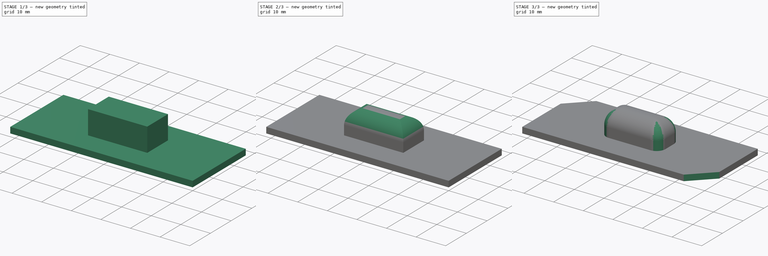
[diagram: build sequence overview — one tinted view per stage of 3, left to right]
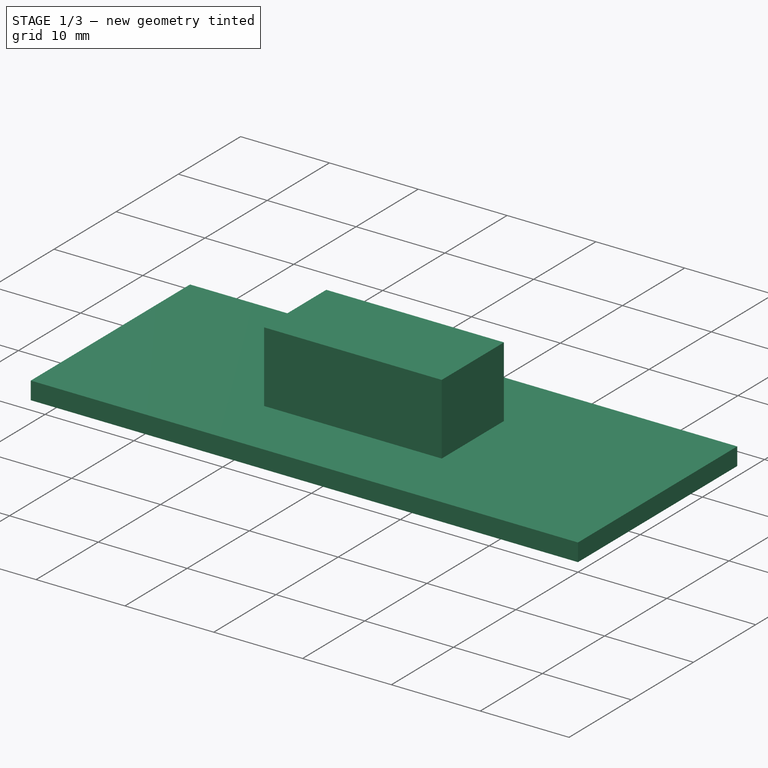
[diagram: stage 1 of 3 — iso view after this stage's code; geometry added in this stage tinted green]
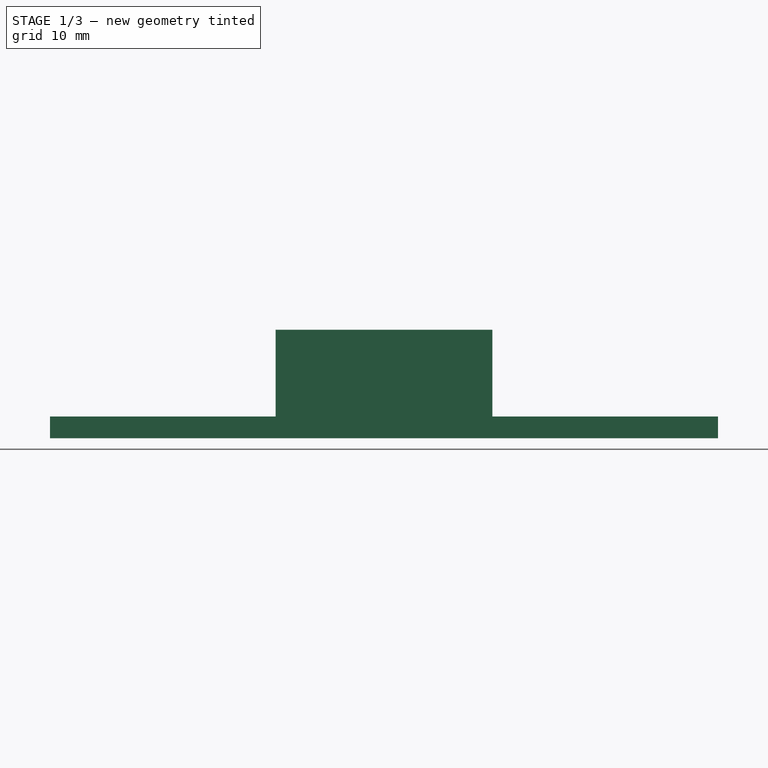
[diagram: stage 1 of 3 — front view after this stage's code; geometry added in this stage tinted green]
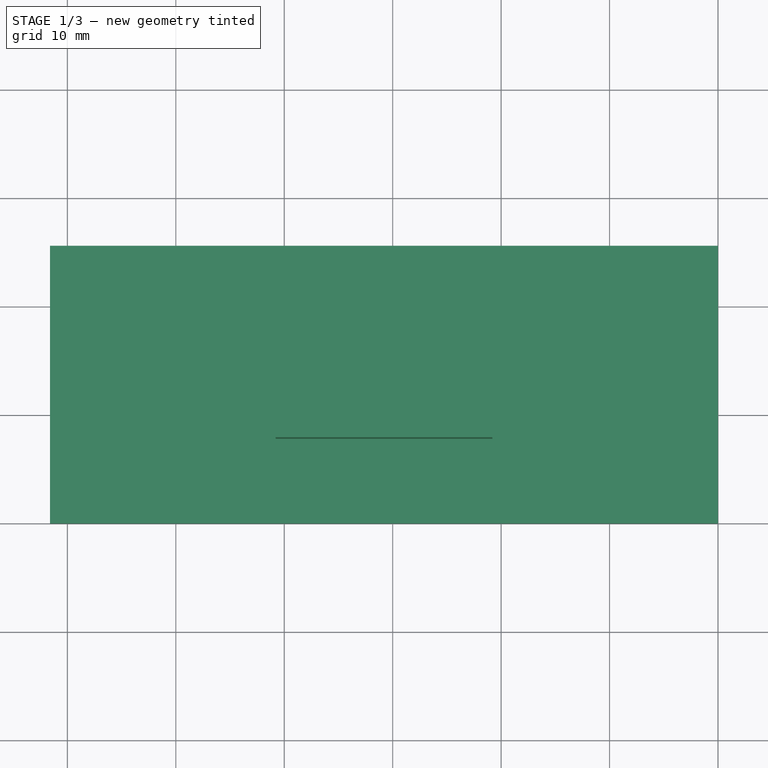
[diagram: stage 1 of 3 — top view after this stage's code; geometry added in this stage tinted green]
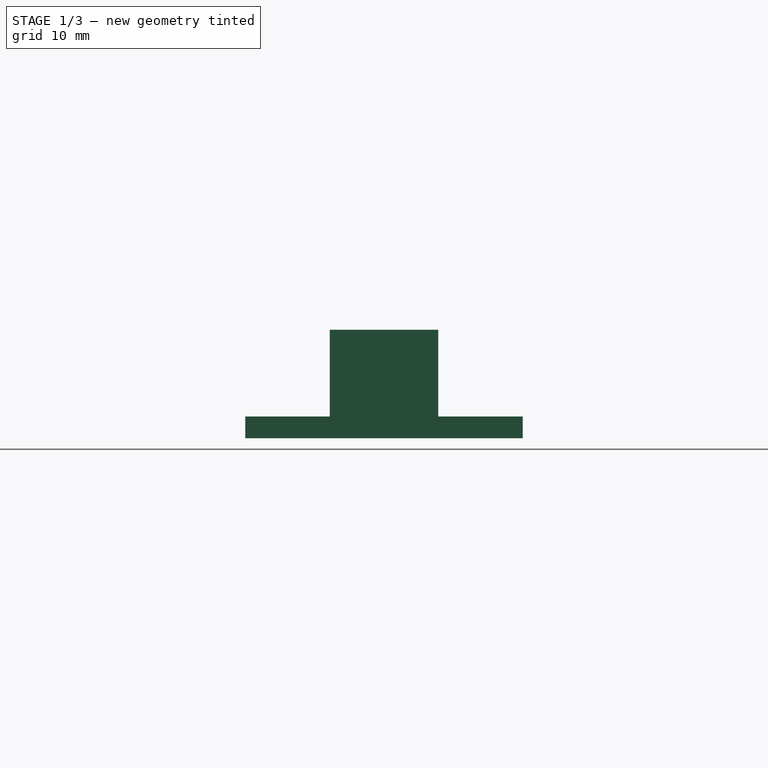
[diagram: stage 1 of 3 — right view after this stage's code; geometry added in this stage tinted green]
FCSTD DOCUMENT  (FreeCAD 0.18R4 (GitTag))
Label: Portal_Lid
License: All rights reserved
LicenseURL: http://en.wikipedia.org/wiki/All_rights_reserved
objects: Sketcher::SketchObject×3, PartDesign::Pad×2, PartDesign::Fillet×2, PartDesign::ShapeBinder×1, PartDesign::Pocket×1, PartDesign::Body×1
note: 13 computed .brp shape members not serialized (recipe doc carries the construction recipe); baked Part::Feature solids carry a one-line shape summary decoded from their .brp

FEATURE [PartDesign::ShapeBinder] CopyMirrored005
  TraceSupport = false
FEATURE [Sketcher::SketchObject] Sketch019
  ExternalGeometry = -> [CopyMirrored005]
  MapMode = 5
  Placement = pos=(0,0,20) rot=(0,0,1;0rad)
  Support = -> [CopyMirrored005]
  sketch-geometry (4):
    g0: LineSegment StartX=-61.6 StartY=25.6 StartZ=0 EndX=0 EndY=25.6 EndZ=0
    g1: LineSegment StartX=0 StartY=25.6 StartZ=0 EndX=0 EndY=0 EndZ=0
    g2: LineSegment StartX=0 StartY=0 StartZ=0 EndX=-61.6 EndY=0 EndZ=0
    g3: LineSegment StartX=-61.6 StartY=0 StartZ=0 EndX=-61.6 EndY=25.6 EndZ=0
  constraints (13):
    c: Coincident(g0,g1)
    c: Coincident(g1,g2)
    c: Coincident(g2,g3)
    c: Coincident(g3,g0)
    c: Horizontal(g0)
    c: Horizontal(g2)
    c: Vertical(g1)
    c: Vertical(g3)
    c: DistanceY(g3,g3) = 25.6
    c: DistanceX(g0,g0) = 61.6
    c: Coincident(g1,g-1)
    c: DistanceX(g-3,g-4) = 62
    c: DistanceY(g-4,g-3) = 26
FEATURE [PartDesign::Pad] Pad003
  Length = 2
  Length2 = 100
  Profile = -> Sketch019
  Type = 0
FEATURE [Sketcher::SketchObject] Sketch020
  MapMode = 5
  Placement = pos=(0,0,22) rot=(0,0,1;0rad)
  Support = -> [Pad003]
  sketch-geometry (4):
    g0: LineSegment StartX=-40.8 StartY=17.8 StartZ=0 EndX=-20.8 EndY=17.8 EndZ=0
    g1: LineSegment StartX=-20.8 StartY=17.8 StartZ=0 EndX=-20.8 EndY=7.8 EndZ=0
    g2: LineSegment StartX=-20.8 StartY=7.8 StartZ=0 EndX=-40.8 EndY=7.8 EndZ=0
    g3: LineSegment StartX=-40.8 StartY=7.8 StartZ=0 EndX=-40.8 EndY=17.8 EndZ=0
  constraints (12):
    c: Coincident(g0,g1)
    c: Coincident(g1,g2)
    c: Coincident(g2,g3)
    c: Coincident(g3,g0)
    c: Horizontal(g0)
    c: Horizontal(g2)
    c: Vertical(g1)
    c: Vertical(g3)
    c: DistanceY(g3,g3) = 10
    c: DistanceX(g0,g0) = 20
    c: DistanceX(g1,g-1) = 20.8
    c: DistanceY(g-1,g1) = 7.8
FEATURE [PartDesign::Pad] Pad004
  BaseFeature = -> Pad003
  Length = 8
  Length2 = 100
  Profile = -> Sketch020
  Type = 0
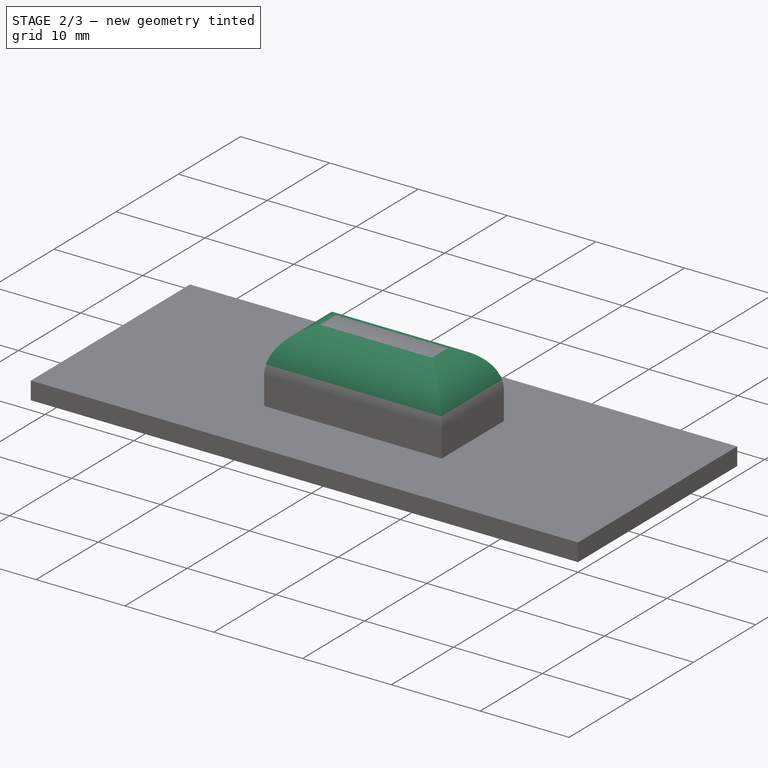
[diagram: stage 2 of 3 — iso view after this stage's code; geometry added in this stage tinted green]
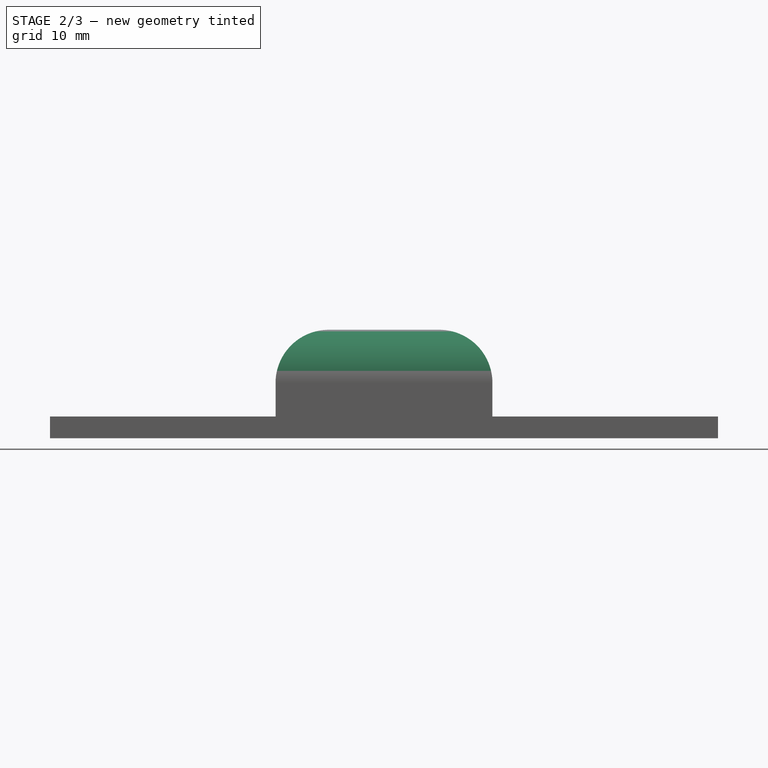
[diagram: stage 2 of 3 — front view after this stage's code; geometry added in this stage tinted green]
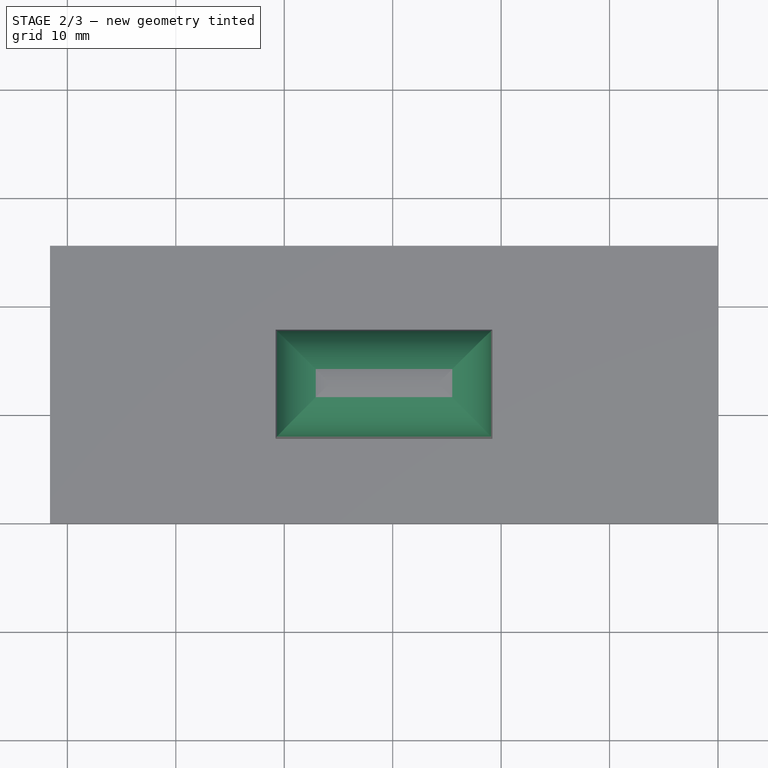
[diagram: stage 2 of 3 — top view after this stage's code; geometry added in this stage tinted green]
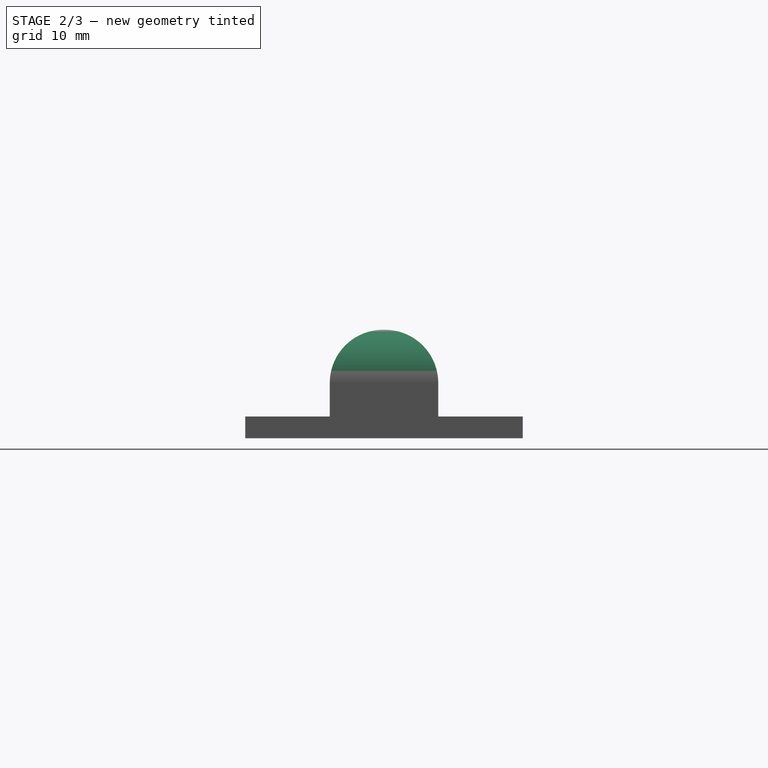
[diagram: stage 2 of 3 — right view after this stage's code; geometry added in this stage tinted green]
FEATURE [PartDesign::Fillet] Fillet
  Base = -> Pad004 [Edge23,Edge24,Edge19,Edge21]
  BaseFeature = -> Pad004
  Radius = 4.9
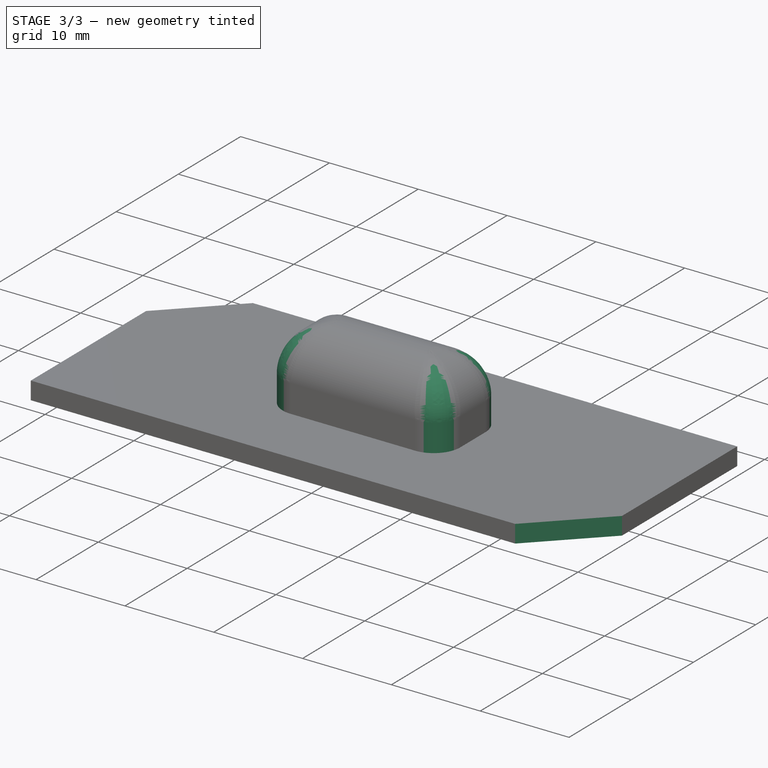
[diagram: stage 3 of 3 — iso view after this stage's code; geometry added in this stage tinted green]
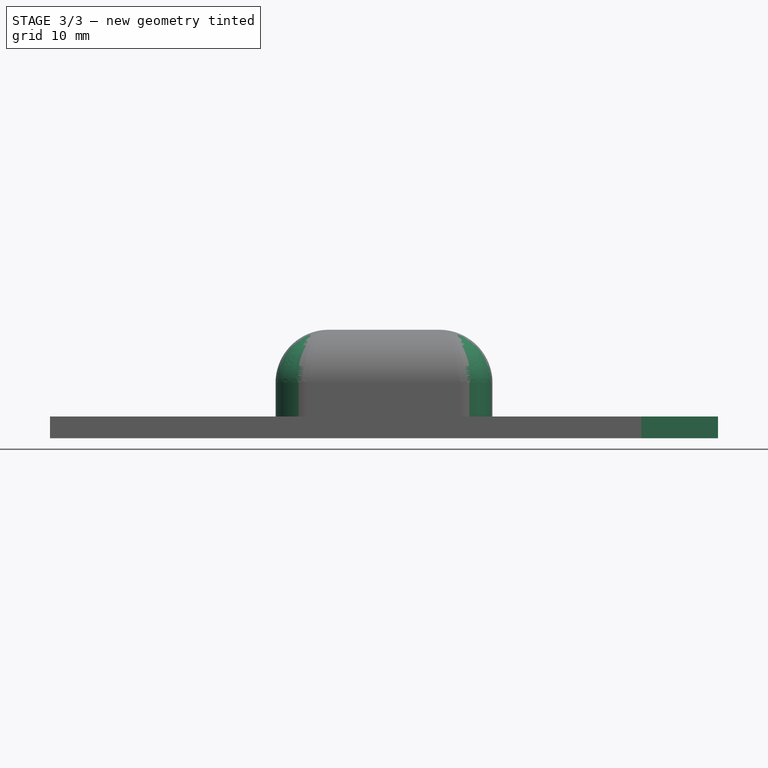
[diagram: stage 3 of 3 — front view after this stage's code; geometry added in this stage tinted green]
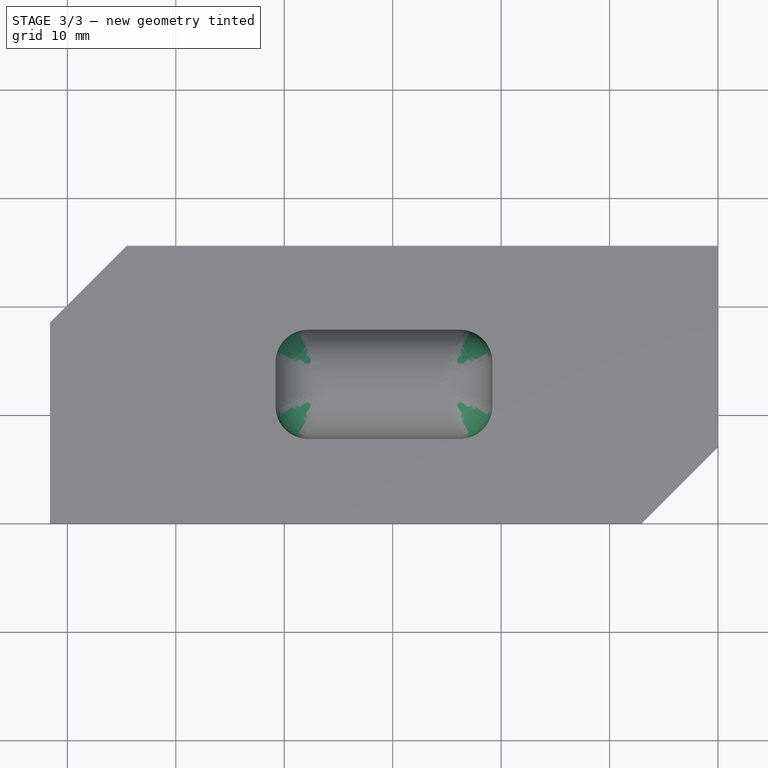
[diagram: stage 3 of 3 — top view after this stage's code; geometry added in this stage tinted green]
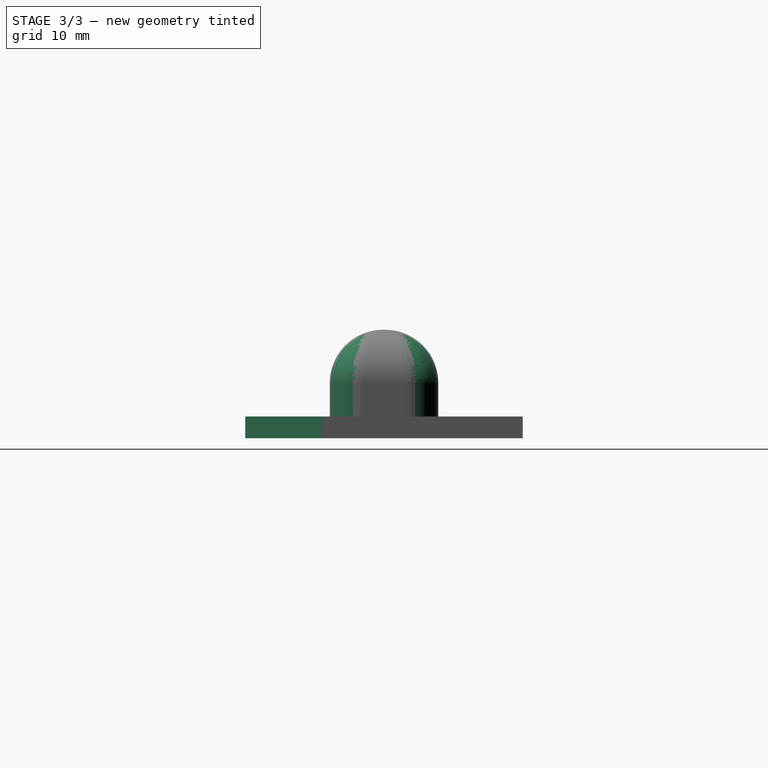
[diagram: stage 3 of 3 — right view after this stage's code; geometry added in this stage tinted green]
FEATURE [PartDesign::Fillet] Fillet001
  Base = -> Fillet [Edge18,Edge4,Edge5,Edge1]
  BaseFeature = -> Fillet
  Radius = 3
FEATURE [Sketcher::SketchObject] Sketch021
  ExternalGeometry = -> [Fillet001]
  MapMode = 5
  Placement = pos=(0,0,22) rot=(0,0,1;0rad)
  Support = -> [Fillet001]
  sketch-geometry (6):
    g0: LineSegment StartX=-61.6 StartY=25.6 StartZ=0 EndX=-61.6 EndY=18.5289 EndZ=0
    g1: LineSegment StartX=-61.6 StartY=18.5289 StartZ=0 EndX=-54.5289 EndY=25.6 EndZ=0
    g2: LineSegment StartX=-54.5289 StartY=25.6 StartZ=0 EndX=-61.6 EndY=25.6 EndZ=0
    g3: LineSegment StartX=-7.07107 StartY=0 StartZ=0 EndX=0 EndY=0 EndZ=0
    g4: LineSegment StartX=0 StartY=0 StartZ=0 EndX=0 EndY=7.07107 EndZ=0
    g5: LineSegment StartX=0 StartY=7.07107 StartZ=0 EndX=-7.07107 EndY=0 EndZ=0
  constraints (16):
    c: Vertical(g0)
    c: Coincident(g0,g1)
    c: Coincident(g1,g2)
    c: Coincident(g2,g0)
    c: Horizontal(g3)
    c: Coincident(g3,g4)
    c: Vertical(g4)
    c: Coincident(g4,g5)
    c: Coincident(g5,g3)
    c: Horizontal(g2)
    c: Angle(g3,g5) = 0.785398
    c: Angle(g2,g1) = 0.785398
    c: Distance(g1) = 10
    c: Coincident(g3,g-1)
    c: Coincident(g0,g-3)
    c: Equal(g5,g1)
FEATURE [PartDesign::Pocket] Pocket011
  BaseFeature = -> Fillet001
  Length = 0
  Length2 = 100
  Profile = -> Sketch021
  Type = 1
FEATURE [PartDesign::Body] Body001
  Group = -> [CopyMirrored005,Sketch019,Pad003,Sketch020,Pad004,Fillet,Fillet001,Sketch021,Pocket011]
  Origin = -> Origin001
  Tip = -> Pocket011
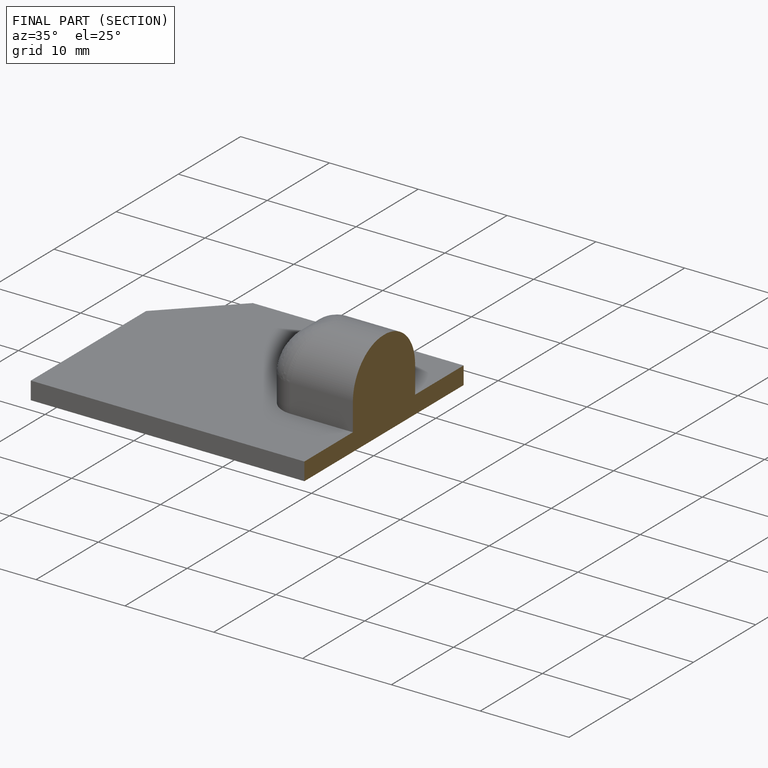
[diagram: finished part — half-section view (interior)]
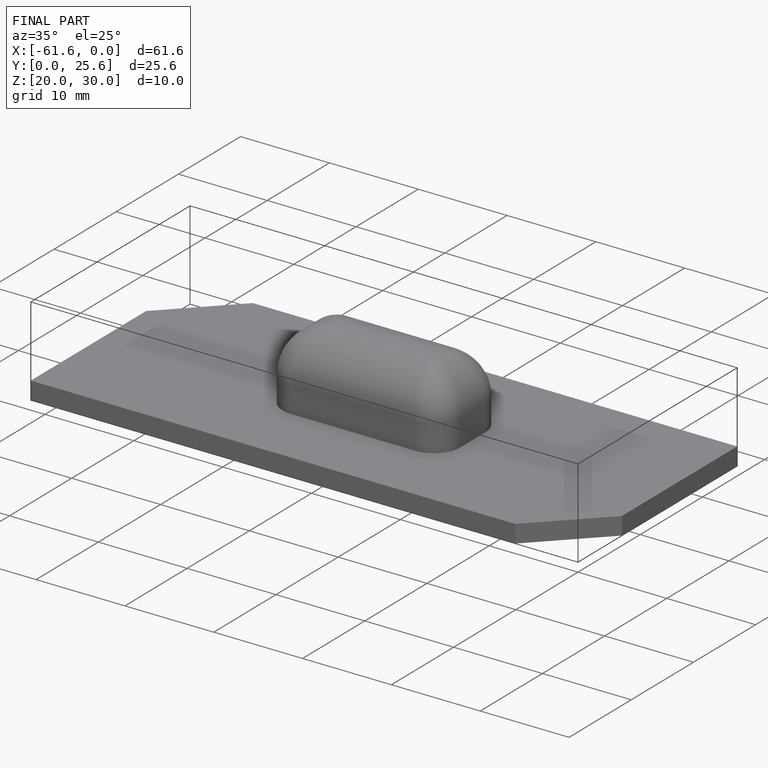
[diagram: finished part — iso view with bounding-box wireframe]
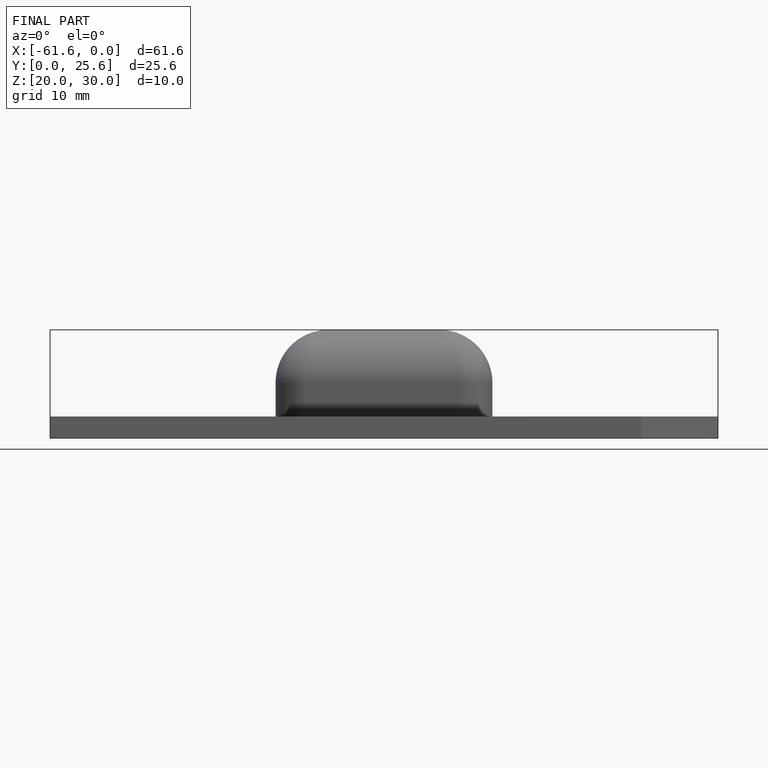
[diagram: finished part — front view with bounding-box wireframe]
